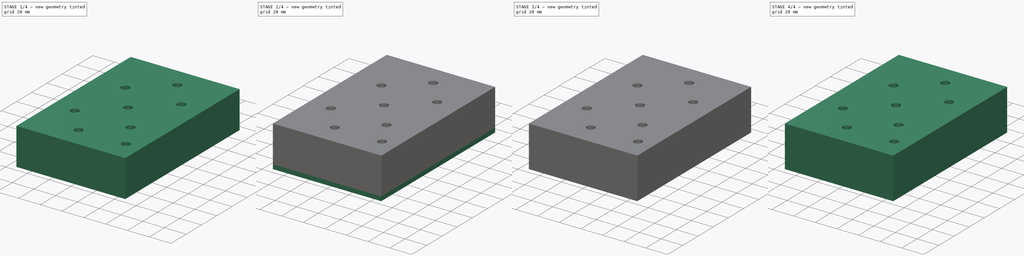
[diagram: build sequence overview — one tinted view per stage of 4, left to right]
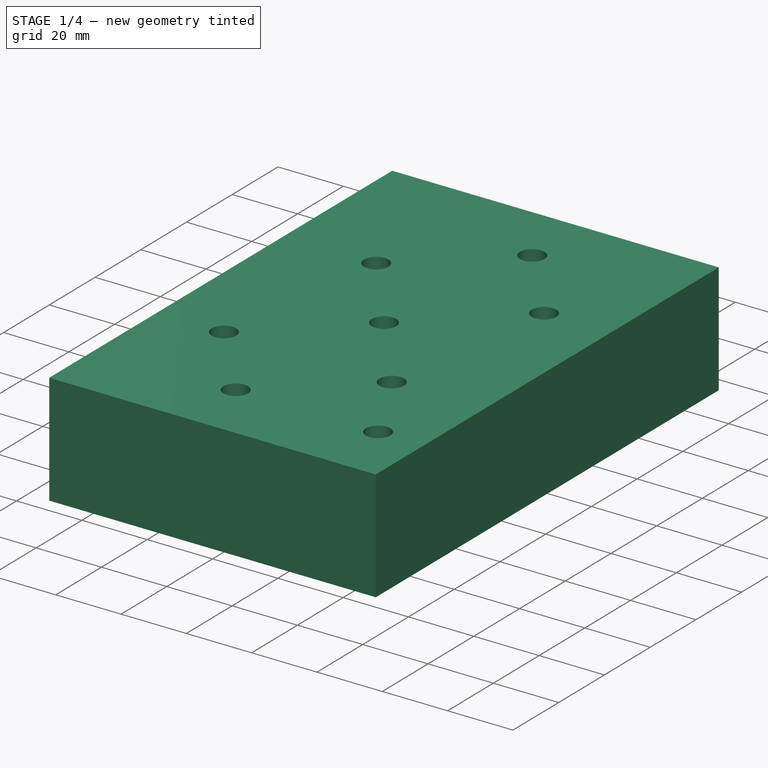
[diagram: stage 1 of 4 — iso view after this stage's code; geometry added in this stage tinted green]
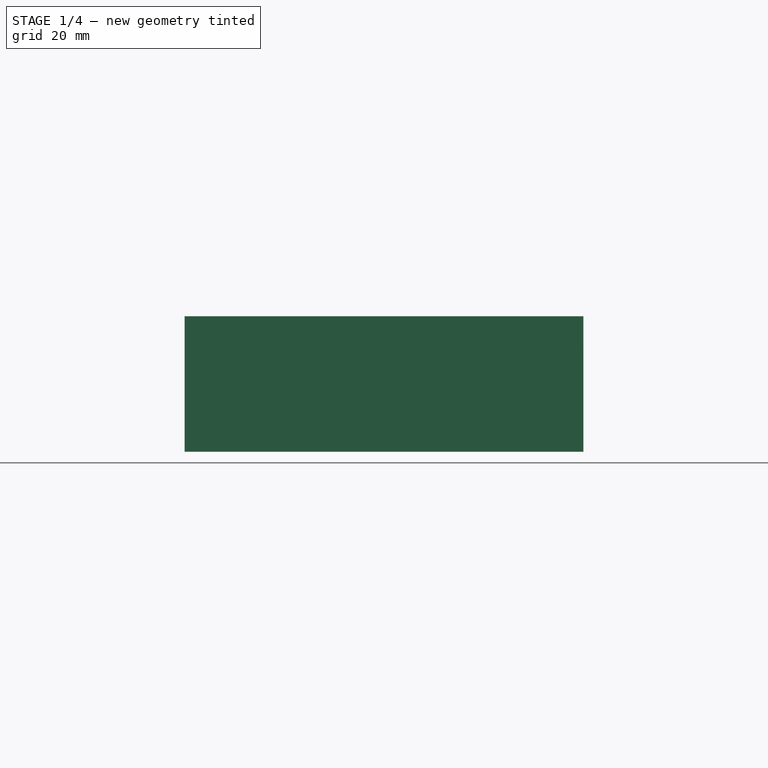
[diagram: stage 1 of 4 — front view after this stage's code; geometry added in this stage tinted green]
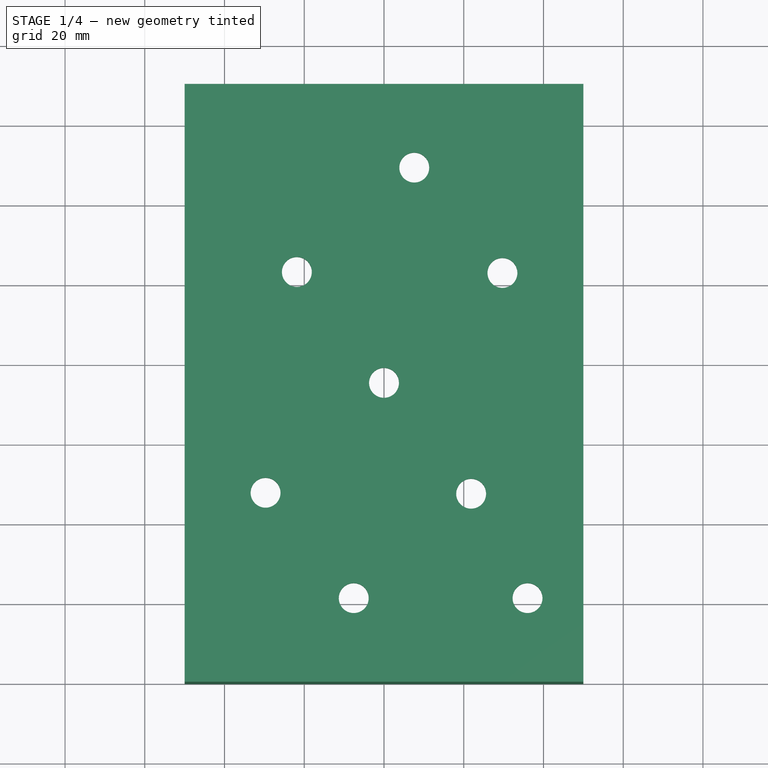
[diagram: stage 1 of 4 — top view after this stage's code; geometry added in this stage tinted green]
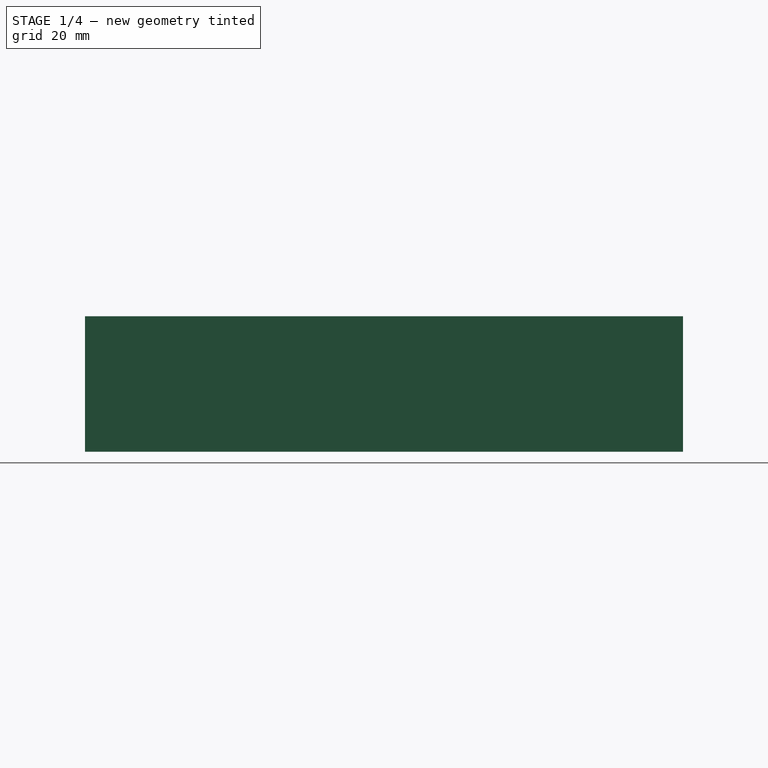
[diagram: stage 1 of 4 — right view after this stage's code; geometry added in this stage tinted green]
FCSTD DOCUMENT  (FreeCAD 0.15R4671 (Git))
Label: ALL
License: All rights reserved
LicenseURL: http://en.wikipedia.org/wiki/All_rights_reserved
objects: Sketcher::SketchObject×10, PartDesign::Pad×5, PartDesign::Pocket×5, Part::Feature×4, Part::MultiFuse×1, Part::Extrusion×1
note: 36 computed .brp shape members not serialized (recipe doc carries the construction recipe); baked Part::Feature solids carry a one-line shape summary decoded from their .brp

FEATURE [Part::Feature] Pocket003_cs
  shape: bbox 100 x 150 x 0.002 mm, 0 faces, 0 solids (baked)
FEATURE [Part::Extrusion] Extrude
  Base = -> Pocket003_cs
  Dir = (0,0,30)
  Solid = true
FEATURE [Sketcher::SketchObject] Sketch008
  ExternalGeometry = -> [Extrude]
  Placement = pos=(0,0,34) rot=(0,0,1;0rad)
  Support = -> Extrude [Face63]
  sketch-geometry (4):
    g0: LineSegment StartX=-50 StartY=150 StartZ=0 EndX=50 EndY=150 EndZ=0
    g1: LineSegment StartX=50 StartY=150 StartZ=0 EndX=50 EndY=0 EndZ=0
    g2: LineSegment StartX=50 StartY=0 StartZ=0 EndX=-50 EndY=0 EndZ=0
    g3: LineSegment StartX=-50 StartY=0 StartZ=0 EndX=-50 EndY=150 EndZ=0
  constraints (10):
    c: Coincident(g0,g1)
    c: Coincident(g1,g2)
    c: Coincident(g2,g3)
    c: Coincident(g3,g0)
    c: Horizontal(g0)
    c: Horizontal(g2)
    c: Vertical(g1)
    c: Vertical(g3)
    c: Coincident(g0,g-5)
    c: Coincident(g1,g-6)
FEATURE [PartDesign::Pad] Pad004
  Length = 4
  Length2 = 100
  Sketch = -> Sketch008
  Type = 0
FEATURE [Sketcher::SketchObject] Sketch009
  ExternalGeometry = -> [Pad004]
  Placement = pos=(0,0,34) rot=(1,0,0;3.14159rad)
  Support = -> Pad004 [Face67]
  sketch-geometry (29):
    g0: LineSegment [constr] StartX=-24.9325 StartY=-15 StartZ=0 EndX=9.75404 EndY=-27 EndZ=0
    g1: LineSegment [constr] StartX=-23.246 StartY=-27 StartZ=0 EndX=8.06755 EndY=-15 EndZ=0
    g2: GeomPoint [constr] X=-7.58921 Y=-21 Z=0
    g3: LineSegment [constr] StartX=-21.3432 StartY=-69 StartZ=0 EndX=21.3432 EndY=-81 EndZ=0
    g4: LineSegment [constr] StartX=-19.6568 StartY=-81 StartZ=0 EndX=19.6568 EndY=-69 EndZ=0
    g5: LineSegment [constr] StartX=-8.06755 StartY=-135 StartZ=0 EndX=23.246 EndY=-123 EndZ=0
    g6: LineSegment [constr] StartX=-9.75404 StartY=-123 StartZ=0 EndX=24.9325 EndY=-135 EndZ=0
    g7: LineSegment [constr] StartX=27.246 StartY=-123 StartZ=0 EndX=32.7811 EndY=-77 EndZ=0
    g8: LineSegment [constr] StartX=22.0809 StartY=-86.2485 StartZ=0 EndX=39.246 EndY=-123 EndZ=0
    g9: LineSegment [constr] StartX=-32.2189 StartY=-77 StartZ=0 EndX=-13.754 EndY=-123 EndZ=0
    g10: LineSegment [constr] StartX=-25.754 StartY=-123 StartZ=0 EndX=-18.8082 EndY=-87.0377 EndZ=0
    g11: LineSegment [constr] StartX=25.754 StartY=-27 StartZ=0 EndX=18.8082 EndY=-62.9623 EndZ=0
    g12: LineSegment [constr] StartX=32.2189 StartY=-73 StartZ=0 EndX=13.754 EndY=-27 EndZ=0
    g13: LineSegment [constr] StartX=-39.246 StartY=-27 StartZ=0 EndX=-22.0809 EndY=-63.7515 EndZ=0
    g14: LineSegment [constr] StartX=-32.7811 StartY=-73 StartZ=0 EndX=-27.246 EndY=-27 EndZ=0
    g15: GeomPoint [constr] X=-29.7042 Y=-47.4295 Z=0
    g16: GeomPoint [constr] X=0 Y=-75 Z=0
    g17: GeomPoint [constr] X=21.8558 Y=-47.1833 Z=0
    g18: GeomPoint [constr] X=29.7042 Y=-102.571 Z=0
    g19: GeomPoint [constr] X=7.58921 Y=-129 Z=0
    g20: GeomPoint [constr] X=-21.8558 Y=-102.817 Z=0
    g21: Circle CenterX=-7.58921 CenterY=-21 CenterZ=0 NormalX=0 NormalY=0 NormalZ=1 Radius=3.75
    g22: Circle CenterX=21.8558 CenterY=-47.1833 CenterZ=0 NormalX=0 NormalY=0 NormalZ=1 Radius=3.75
    g23: Circle CenterX=0 CenterY=-75 CenterZ=0 NormalX=0 NormalY=0 NormalZ=1 Radius=3.75
    g24: Circle CenterX=-29.7042 CenterY=-47.4295 CenterZ=0 NormalX=0 NormalY=0 NormalZ=1 Radius=3.75
    g25: Circle CenterX=-21.8558 CenterY=-102.817 CenterZ=0 NormalX=0 NormalY=0 NormalZ=1 Radius=3.75
    g26: Circle CenterX=7.58921 CenterY=-129 CenterZ=0 NormalX=0 NormalY=0 NormalZ=1 Radius=3.75
    g27: Circle CenterX=29.7042 CenterY=-102.571 CenterZ=0 NormalX=0 NormalY=0 NormalZ=1 Radius=3.75
    g28: Circle CenterX=36 CenterY=-21 CenterZ=0 NormalX=0 NormalY=0 NormalZ=1 Radius=3.75
  constraints (58):
    c: Coincident(g0,g-3)
    c: Coincident(g0,g-4)
    c: Coincident(g1,g-4)
    c: Coincident(g1,g-3)
    c: PointOnObject(g2,g0)
    c: PointOnObject(g2,g1)
    c: Coincident(g3,g-5)
    c: Coincident(g3,g-6)
    c: Coincident(g4,g-6)
    c: Coincident(g4,g-5)
    c: Coincident(g5,g-7)
    c: Coincident(g5,g-8)
    c: Coincident(g6,g-7)
    c: Coincident(g6,g-8)
    c: Coincident(g7,g-11)
    c: Coincident(g7,g-10)
    c: Coincident(g8,g-11)
    c: Coincident(g8,g-10)
    c: Coincident(g9,g-13)
    c: Coincident(g9,g-12)
    c: Coincident(g10,g-13)
    c: Coincident(g10,g-12)
    c: Coincident(g11,g-14)
    c: Coincident(g11,g-15)
    c: Coincident(g12,g-14)
    c: Coincident(g12,g-15)
    c: Coincident(g13,g-17)
    c: Coincident(g13,g-16)
    c: Coincident(g14,g-17)
    c: Coincident(g14,g-16)
    c: PointOnObject(g15,g13)
    c: PointOnObject(g16,g4)
    c: PointOnObject(g17,g12)
    c: PointOnObject(g18,g8)
    c: PointOnObject(g19,g6)
    c: PointOnObject(g20,g10)
    c: PointOnObject(g20,g9)
    c: PointOnObject(g16,g3)
    c: PointOnObject(g15,g14)
    c: PointOnObject(g17,g11)
    c: PointOnObject(g18,g7)
    c: PointOnObject(g19,g5)
    c: Coincident(g21,g2)
    c: Coincident(g22,g17)
    c: Coincident(g23,g16)
    c: Coincident(g24,g15)
    c: Coincident(g25,g20)
    c: Coincident(g26,g19)
    c: Coincident(g27,g18)
    c: Coincident(g28,g-9)
    c: Radius(g28) = 3.75
    c: Equal(g28,g22)
    c: Equal(g28,g21)
    c: Equal(g28,g24)
    c: Equal(g28,g23)
    c: Equal(g28,g27)
    c: Equal(g28,g26)
    c: Equal(g28,g25)
FEATURE [PartDesign::Pocket] Pocket004
  Length = 5
  Sketch = -> Sketch009
  Type = 0
FEATURE [Part::Feature] Pocket005  label="BACK PLATE"
  shape: bbox 100 x 150 x 34 mm, 78 faces (baked)
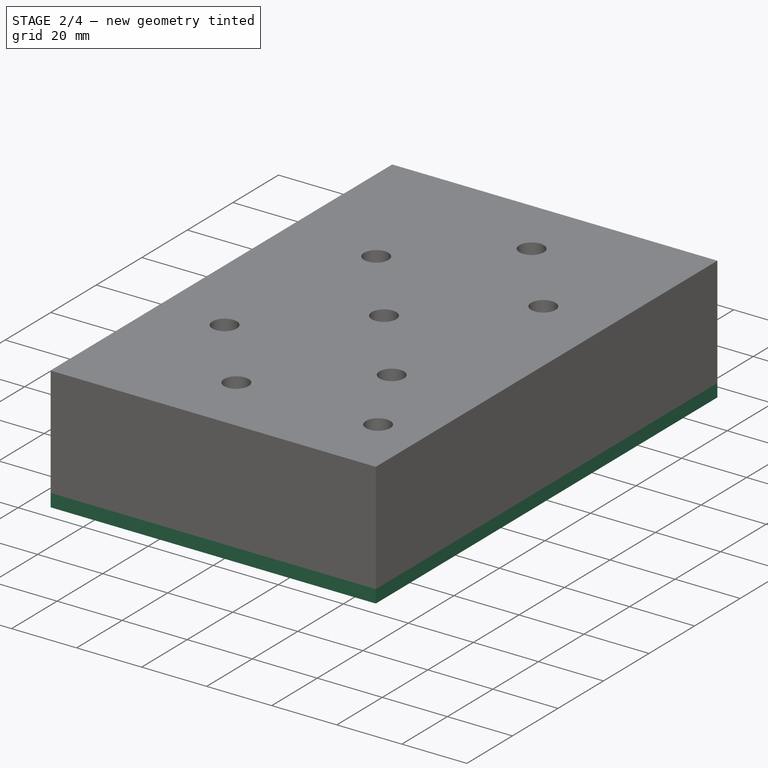
[diagram: stage 2 of 4 — iso view after this stage's code; geometry added in this stage tinted green]
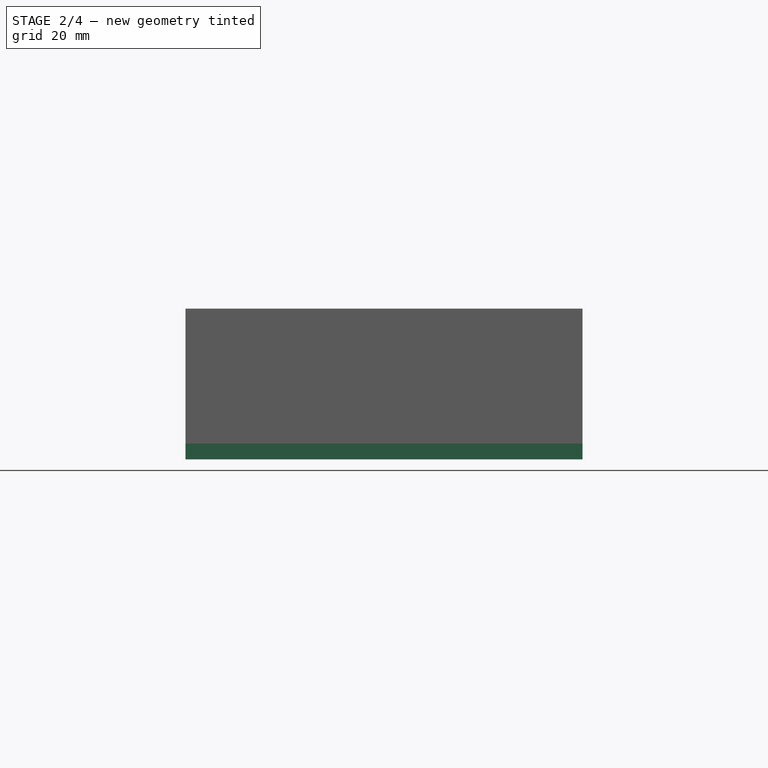
[diagram: stage 2 of 4 — front view after this stage's code; geometry added in this stage tinted green]
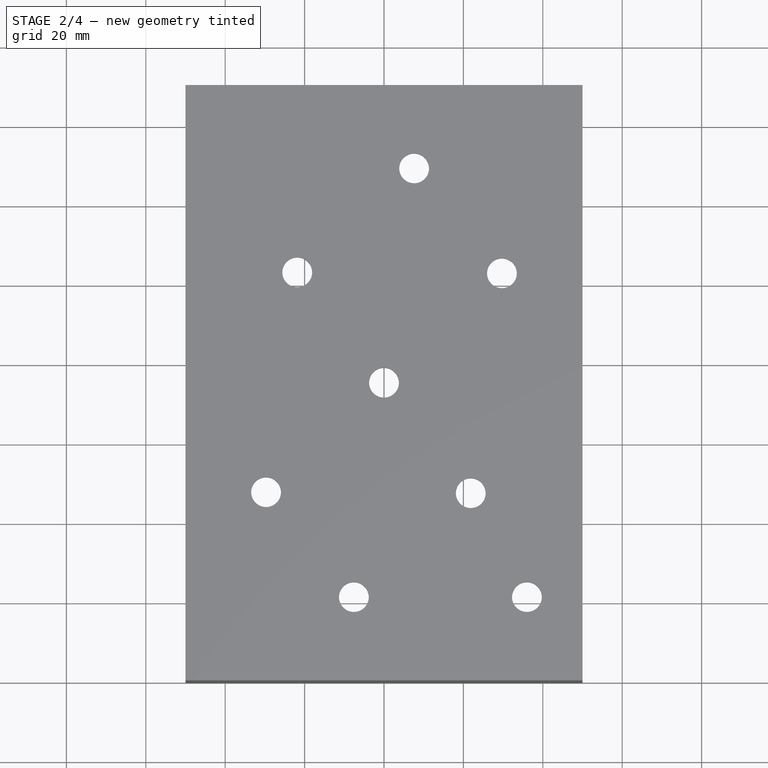
[diagram: stage 2 of 4 — top view after this stage's code; geometry added in this stage tinted green]
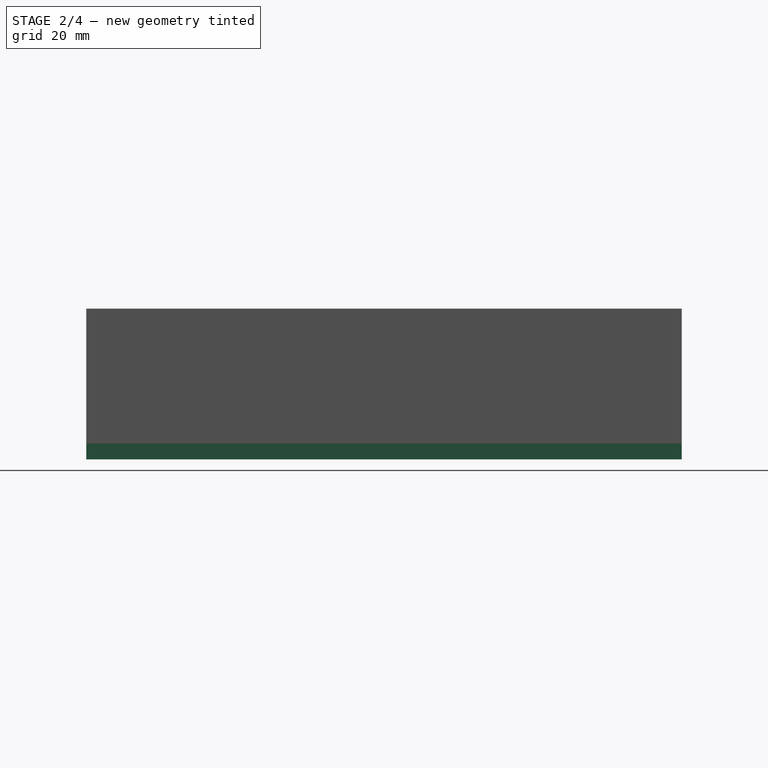
[diagram: stage 2 of 4 — right view after this stage's code; geometry added in this stage tinted green]
FEATURE [Sketcher::SketchObject] Sketch005
  sketch-geometry (32):
    g0: LineSegment [constr] StartX=-84.5985 StartY=75 StartZ=0 EndX=84.5985 EndY=75 EndZ=0
    g1: LineSegment [constr] StartX=-31.8655 StartY=-5.86965 StartZ=0 EndX=-8.79618 EndY=158.277 EndZ=0
    g2: LineSegment [constr] StartX=6.47085 StartY=-24.8226 StartZ=0 EndX=34.2805 EndY=173.053 EndZ=0
    g3: LineSegment [constr] StartX=-20.5 StartY=75 StartZ=0 EndX=20.5 EndY=75 EndZ=0
    g4: LineSegment [constr] StartX=-27.246 StartY=27 StartZ=0 EndX=13.754 EndY=27 EndZ=0
    g5: LineSegment [constr] StartX=-28.9325 StartY=15 StartZ=0 EndX=12.0675 EndY=15 EndZ=0
    g6: LineSegment [constr] StartX=-13.754 StartY=123 StartZ=0 EndX=27.246 EndY=123 EndZ=0
    g7: LineSegment [constr] StartX=-12.0675 StartY=135 StartZ=0 EndX=28.9325 EndY=135 EndZ=0
    g8: LineSegment [constr] StartX=-21.3432 StartY=69 StartZ=0 EndX=19.6568 EndY=69 EndZ=0
    g9: LineSegment [constr] StartX=-19.6568 StartY=81 StartZ=0 EndX=21.3432 EndY=81 EndZ=0
    g10: LineSegment [constr] StartX=-35.4406 StartY=54.9158 StartZ=0 EndX=-29.9182 EndY=94.2096 EndZ=0
    g11: LineSegment [constr] StartX=-29.9182 StartY=94.2096 StartZ=0 EndX=-18.035 EndY=92.5395 EndZ=0
    g12: LineSegment [constr] StartX=29.64 StartY=53.8107 StartZ=0 EndX=35.1624 EndY=93.1045 EndZ=0
    g13: LineSegment [constr] StartX=23.2791 StartY=94.7746 StartZ=0 EndX=35.1624 EndY=93.1045 EndZ=0
    g14: LineSegment StartX=-21.3432 StartY=69 StartZ=0 EndX=-26.559 EndY=75 EndZ=0
    g15: LineSegment StartX=-26.559 StartY=75 StartZ=0 EndX=-19.6568 EndY=81 EndZ=0
    g16: LineSegment StartX=21.3432 StartY=81 StartZ=0 EndX=26.559 EndY=75 EndZ=0
    g17: LineSegment StartX=19.6568 StartY=69 StartZ=0 EndX=26.559 EndY=75 EndZ=0
    g18: LineSegment StartX=-18.8082 StartY=87.0377 StartZ=0 EndX=-30.3552 EndY=77 EndZ=0
    g19: LineSegment StartX=-22.0809 StartY=63.7515 StartZ=0 EndX=-30.1204 EndY=73 EndZ=0
    g20: LineSegment StartX=-32.899 StartY=73 StartZ=0 EndX=-30.1204 EndY=73 EndZ=0
    g21: LineSegment StartX=-32.3368 StartY=77 StartZ=0 EndX=-30.3552 EndY=77 EndZ=0
    g22: LineSegment StartX=-19.6568 StartY=81 StartZ=0 EndX=-18.8082 EndY=87.0377 EndZ=0
    g23: LineSegment StartX=-32.899 StartY=73 StartZ=0 EndX=-32.3368 EndY=77 EndZ=0
    g24: LineSegment StartX=22.0809 StartY=86.2485 StartZ=0 EndX=30.1204 EndY=77 EndZ=0
    g25: LineSegment StartX=18.8082 StartY=62.9623 StartZ=0 EndX=30.3552 EndY=73 EndZ=0
    g26: LineSegment StartX=30.1204 StartY=77 StartZ=0 EndX=32.899 EndY=77 EndZ=0
    g27: LineSegment StartX=30.3552 StartY=73 StartZ=0 EndX=32.3368 EndY=73 EndZ=0
    g28: LineSegment StartX=21.3432 StartY=81 StartZ=0 EndX=22.0809 EndY=86.2485 EndZ=0
    g29: LineSegment StartX=19.6568 StartY=69 StartZ=0 EndX=18.8082 EndY=62.9623 EndZ=0
    g30: LineSegment StartX=32.899 StartY=77 StartZ=0 EndX=32.3368 EndY=73 EndZ=0
    g31: LineSegment StartX=-21.3432 StartY=69 StartZ=0 EndX=-22.0809 EndY=63.7515 EndZ=0
  constraints (104):
    c: Horizontal(g0)
    c: Symmetric(g0,g0,g-2)
    c: DistanceY(g0) = 75
    c: Angle(g1) = 1.43117
    c: Parallel(g2,g1)
    c: PointOnObject(g3,g1)
    c: PointOnObject(g3,g2)
    c: Horizontal(g3)
    c: Symmetric(g3,g3,g-2)
    c: PointOnObject(g3,g0)
    c: DistanceX(g3,g3) = 41
    c: PointOnObject(g4,g1)
    c: PointOnObject(g4,g2)
    c: Horizontal(g4)
    c: DistanceY(g4,g3) = 48
    c: PointOnObject(g5,g1)
    c: PointOnObject(g5,g2)
    c: Horizontal(g5)
    c: DistanceY(g5,g4) = 12
    c: PointOnObject(g6,g1)
    c: PointOnObject(g6,g2)
    c: Horizontal(g6)
    c: DistanceY(g6,g3) = -48
    c: PointOnObject(g7,g1)
    c: PointOnObject(g7,g2)
    c: Horizontal(g7)
    c: DistanceY(g7,g6) = -12
    c: PointOnObject(g8,g1)
    c: PointOnObject(g8,g2)
    c: Horizontal(g8)
    c: PointOnObject(g9,g1)
    c: PointOnObject(g9,g2)
    c: Horizontal(g9)
    c: DistanceY(g9,g3) = -6
    c: DistanceY(g8,g3) = 6
    c: Parallel(g10,g1)
    c: Coincident(g11,g10)
    c: PointOnObject(g11,g1)
    c: Perpendicular(g11,g10)
    c: Distance(g11,g10) = 12
    c: PointOnObject(g13,g2)
    c: Coincident(g13,g12)
    c: Perpendicular(g13,g12)
    c: Parallel(g12,g2)
    c: Distance(g12,g13) = 12
    c: Coincident(g14,g8)
    c: PointOnObject(g14,g0)
    c: Coincident(g15,g14)
    c: Coincident(g15,g9)
    c: Perpendicular(g15,g14)
    c: Coincident(g16,g9)
    c: PointOnObject(g16,g0)
    c: Coincident(g17,g8)
    c: Coincident(g17,g16)
    c: Perpendicular(g16,g17)
    c: PointOnObject(g18,g1)
    c: PointOnObject(g19,g1)
    c: PointOnObject(g20,g10)
    c: Coincident(g20,g19)
    c: Horizontal(g20)
    c: PointOnObject(g21,g10)
    c: Coincident(g21,g18)
    c: Horizontal(g21)
    c: DistanceY(g20,g21) = 4
    c: DistanceY(g19,g14) = 2
    c: Parallel(g19,g14)
    c: Parallel(g15,g18)
    c: Distance(g8,g19) = 4
    c: Distance(g9,g18) = 4
    c: Coincident(g22,g9)
    c: Coincident(g22,g18)
    c: Coincident(g23,g20)
    c: Coincident(g23,g21)
    c: PointOnObject(g24,g2)
    c: PointOnObject(g25,g2)
    c: Parallel(g25,g17)
    c: Parallel(g24,g16)
    c: Coincident(g26,g24)
    c: PointOnObject(g26,g12)
    c: Horizontal(g26)
    c: Coincident(g27,g25)
    c: PointOnObject(g27,g12)
    c: Horizontal(g27)
    c: DistanceY(g27,g26) = 4
    c: DistanceY(g27,g16) = 2
    c: Distance(g8,g25) = 4
    c: Distance(g9,g24) = 4
    c: Coincident(g28,g9)
    c: Coincident(g28,g24)
    c: Coincident(g29,g8)
    c: Coincident(g29,g25)
    c: Coincident(g30,g26)
    c: Coincident(g30,g27)
    c: DistanceY(g1) = 158.277
    c: DistanceY(g1) = -5.86965
    c: DistanceY(g2) = 173.053
    c: DistanceY(g2) = -24.8226
    c: Equal(g12,g10)
    c: DistanceY(g10) = 54.9158
    c: DistanceY(g11) = 92.5395
    c: DistanceY(g13) = 94.7746
    c: DistanceX(g0) = 84.5985
    c: Coincident(g31,g8)
    c: Coincident(g31,g19)
FEATURE [PartDesign::Pad] Pad003
  Length = 4
  Length2 = 100
  Sketch = -> Sketch005
  Type = 0
FEATURE [Part::Feature] Fusion001  label="FRONT PLATE"
  shape: bbox 100 x 150 x 4 mm, 41 faces (baked)
FEATURE [Part::Feature] Fusion002
  shape: bbox 100 x 150 x 4.002 mm, 41 faces (baked)
FEATURE [Sketcher::SketchObject] Sketch006
  ExternalGeometry = -> [Fusion002]
  Placement = pos=(0,0,4) rot=(0,0,1;0rad)
  Support = -> Fusion002 [Face37]
  sketch-geometry (8):
    g0: LineSegment StartX=-17.8661 StartY=65 StartZ=0 EndX=15.0553 EndY=65 EndZ=0
    g1: LineSegment StartX=-22.6445 StartY=31 StartZ=0 EndX=10.2769 EndY=31 EndZ=0
    g2: LineSegment StartX=-17.8661 StartY=65 StartZ=0 EndX=-22.6445 EndY=31 EndZ=0
    g3: LineSegment StartX=15.0553 StartY=65 StartZ=0 EndX=10.2769 EndY=31 EndZ=0
    g4: LineSegment StartX=-10.2769 StartY=119 StartZ=0 EndX=22.6445 EndY=119 EndZ=0
    g5: LineSegment StartX=22.6445 StartY=119 StartZ=0 EndX=17.8661 EndY=85 EndZ=0
    g6: LineSegment StartX=17.8661 StartY=85 StartZ=0 EndX=-15.0553 EndY=85 EndZ=0
    g7: LineSegment StartX=-10.2769 StartY=119 StartZ=0 EndX=-15.0553 EndY=85 EndZ=0
  constraints (24):
    c: Horizontal(g0)
    c: Horizontal(g1)
    c: Coincident(g2,g0)
    c: Coincident(g2,g1)
    c: Coincident(g3,g0)
    c: Coincident(g3,g1)
    c: Parallel(g3,g-8)
    c: Parallel(g2,g-9)
    c: DistanceY(g0,g-7) = 4
    c: Distance(g-8,g3) = 4
    c: Distance(g1,g-9) = 4
    c: DistanceY(g1,g-10) = -4
    c: Horizontal(g4)
    c: Coincident(g5,g4)
    c: Coincident(g6,g5)
    c: Horizontal(g6)
    c: Coincident(g7,g4)
    c: Coincident(g6,g7)
    c: Parallel(g7,g-5)
    c: Parallel(g5,g-4)
    c: Distance(g4,g-4) = 4
    c: Distance(g4,g-5) = 4
    c: DistanceY(g5,g-6) = -4
    c: DistanceY(g4,g-3) = 4
FEATURE [PartDesign::Pocket] Pocket002
  Length = 5
  Sketch = -> Sketch006
  Type = 0
FEATURE [Sketcher::SketchObject] Sketch007
  ExternalGeometry = -> [Pocket002]
  Placement = pos=(0,0,4) rot=(0,0,1;0rad)
  Support = -> Pocket002 [Face5]
  sketch-geometry (10):
    g0: LineSegment StartX=-27.5447 StartY=139 StartZ=0 EndX=45.5339 EndY=139 EndZ=0
    g1: LineSegment StartX=-27.5447 StartY=139 StartZ=0 EndX=-45.5339 EndY=11 EndZ=0
    g2: LineSegment StartX=-46 StartY=146 StartZ=0 EndX=-46 EndY=4 EndZ=0
    g3: LineSegment StartX=-46 StartY=146 StartZ=0 EndX=46 EndY=146 EndZ=0
    g4: LineSegment StartX=30.3555 StartY=31 StartZ=0 EndX=45.5339 EndY=139 EndZ=0
    g5: LineSegment StartX=30.3555 StartY=31 StartZ=0 EndX=46 EndY=31 EndZ=0
    g6: LineSegment StartX=46 StartY=146 StartZ=0 EndX=46 EndY=31 EndZ=0
    g7: LineSegment StartX=-46 StartY=4 StartZ=0 EndX=46 EndY=4 EndZ=0
    g8: LineSegment StartX=-45.5339 StartY=11 StartZ=0 EndX=46 EndY=11 EndZ=0
    g9: LineSegment StartX=46 StartY=11 StartZ=0 EndX=46 EndY=4 EndZ=0
  constraints (30):
    c: Horizontal(g0)
    c: DistanceY(g0,g-4) = -4
    c: Coincident(g1,g0)
    c: Distance(g-7,g1) = 4
    c: Parallel(g1,g-7)
    c: Vertical(g2)
    c: Coincident(g3,g2)
    c: Horizontal(g3)
    c: DistanceX(g2,g-8) = -4
    c: DistanceY(g2,g-8) = 4
    c: DistanceX(g-9,g3) = -4
    c: Parallel(g4,g-5)
    c: Distance(g-5,g4) = 4
    c: Coincident(g4,g0)
    c: Coincident(g5,g4)
    c: Horizontal(g5)
    c: DistanceY(g4) = 31
    c: Coincident(g6,g3)
    c: Coincident(g6,g5)
    c: Vertical(g6)
    c: Horizontal(g7)
    c: Coincident(g2,g7)
    c: DistanceY(g2,g-8) = -4
    c: DistanceX(g-9,g7) = -4
    c: Horizontal(g8)
    c: DistanceY(g-6,g8) = -4
    c: Coincident(g1,g8)
    c: Coincident(g9,g8)
    c: Coincident(g9,g7)
    c: Vertical(g9)
FEATURE [PartDesign::Pocket] Pocket003
  Length = 5
  Sketch = -> Sketch007
  Type = 0
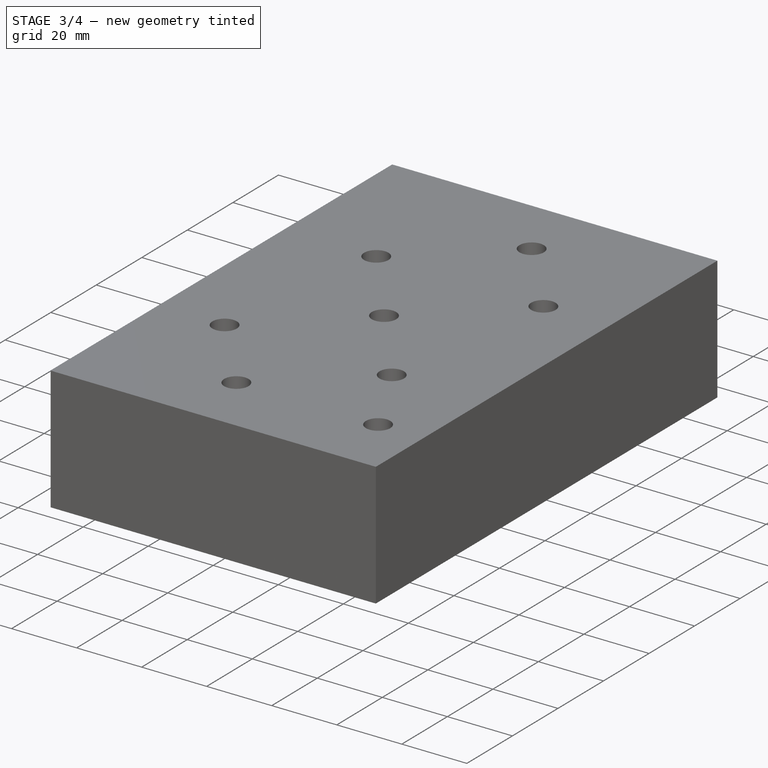
[diagram: stage 3 of 4 — iso view after this stage's code; geometry added in this stage tinted green]
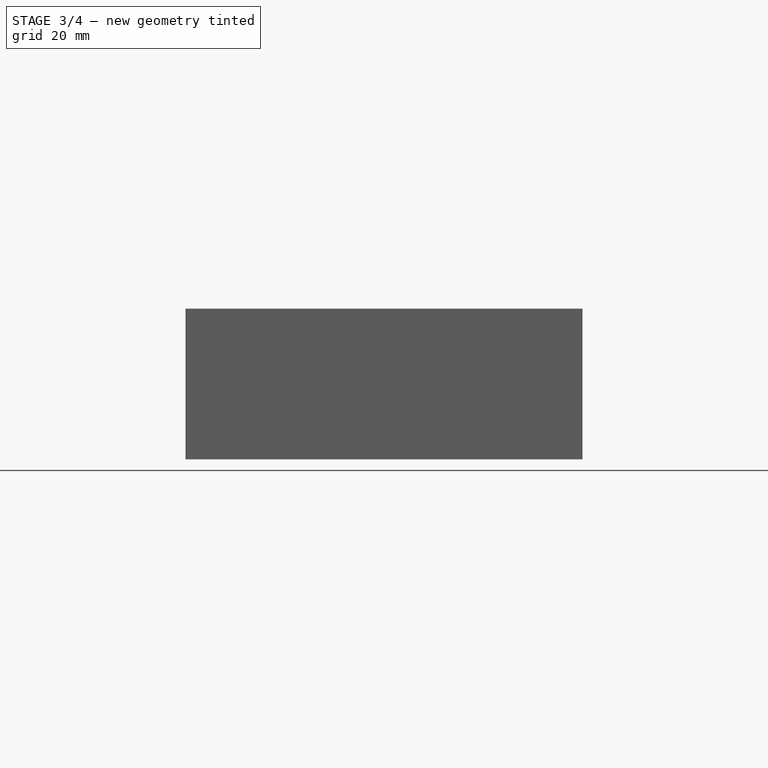
[diagram: stage 3 of 4 — front view after this stage's code; geometry added in this stage tinted green]
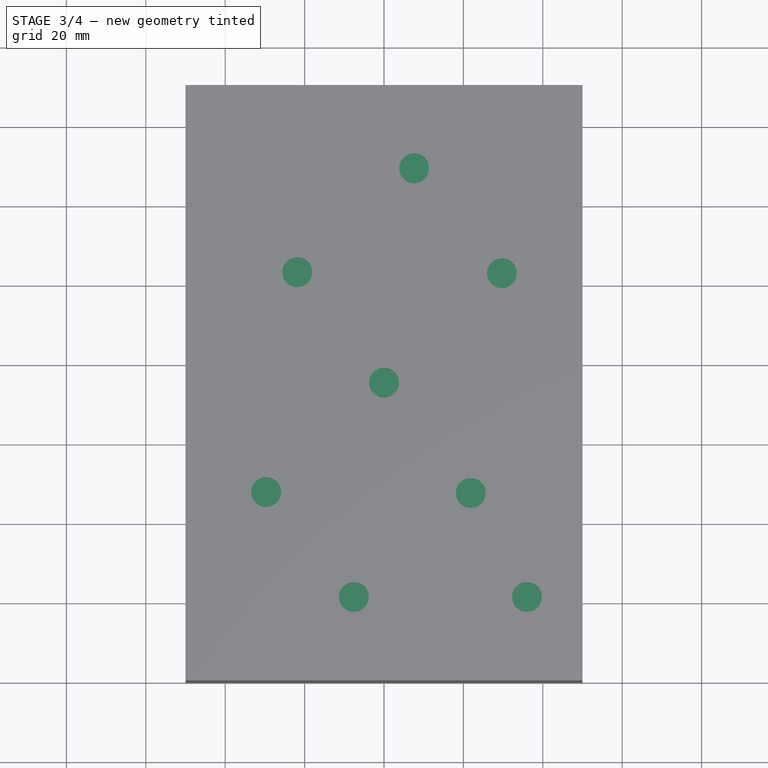
[diagram: stage 3 of 4 — top view after this stage's code; geometry added in this stage tinted green]
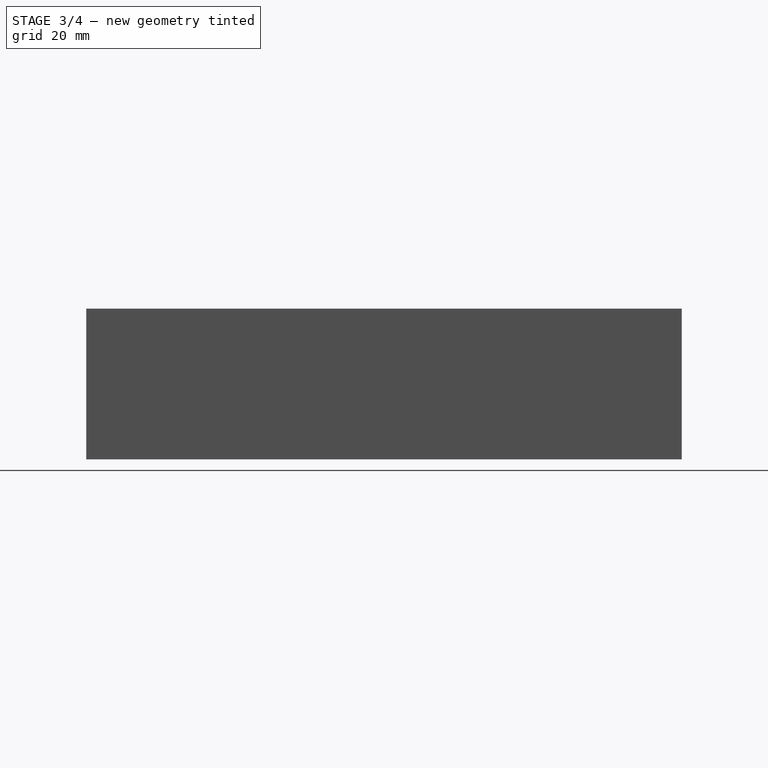
[diagram: stage 3 of 4 — right view after this stage's code; geometry added in this stage tinted green]
FEATURE [Sketcher::SketchObject] Sketch
  sketch-geometry (4):
    g0: LineSegment StartX=-50 StartY=0 StartZ=0 EndX=50 EndY=0 EndZ=0
    g1: LineSegment StartX=50 StartY=0 StartZ=0 EndX=50 EndY=150 EndZ=0
    g2: LineSegment StartX=50 StartY=150 StartZ=0 EndX=-50 EndY=150 EndZ=0
    g3: LineSegment StartX=-50 StartY=150 StartZ=0 EndX=-50 EndY=0 EndZ=0
  constraints (12):
    c: Coincident(g0,g1)
    c: Coincident(g1,g2)
    c: Coincident(g2,g3)
    c: Coincident(g3,g0)
    c: Horizontal(g0)
    c: Horizontal(g2)
    c: Vertical(g1)
    c: Vertical(g3)
    c: PointOnObject(g0,g-1)
    c: DistanceY(g2,g0) = -150
    c: Symmetric(g0,g0,g-2)
    c: DistanceX(g0,g0) = -100
FEATURE [PartDesign::Pad] Pad
  Length = 4
  Length2 = 100
  Sketch = -> Sketch
  Type = 0
FEATURE [Sketcher::SketchObject] Sketch003
  sketch-geometry (12):
    g0: LineSegment [constr] StartX=-80 StartY=75 StartZ=0 EndX=80 EndY=75 EndZ=0
    g1: LineSegment [constr] StartX=-27.246 StartY=27 StartZ=0 EndX=-13.754 EndY=123 EndZ=0
    g2: LineSegment [constr] StartX=27.246 StartY=123 StartZ=0 EndX=13.754 EndY=27 EndZ=0
    g3: LineSegment StartX=-27.246 StartY=27 StartZ=0 EndX=13.754 EndY=27 EndZ=0
    g4: LineSegment StartX=-13.754 StartY=123 StartZ=0 EndX=27.246 EndY=123 EndZ=0
    g5: LineSegment [constr] StartX=-20.5 StartY=75 StartZ=0 EndX=20.5 EndY=75 EndZ=0
    g6: LineSegment StartX=-27.246 StartY=27 StartZ=0 EndX=-21.3432 EndY=69 EndZ=0
    g7: LineSegment StartX=-21.3432 StartY=69 StartZ=0 EndX=19.6568 EndY=69 EndZ=0
    g8: LineSegment StartX=19.6568 StartY=69 StartZ=0 EndX=13.754 EndY=27 EndZ=0
    g9: LineSegment StartX=-19.6568 StartY=81 StartZ=0 EndX=-13.754 EndY=123 EndZ=0
    g10: LineSegment StartX=27.246 StartY=123 StartZ=0 EndX=21.3432 EndY=81 EndZ=0
    g11: LineSegment StartX=-19.6568 StartY=81 StartZ=0 EndX=21.3432 EndY=81 EndZ=0
  constraints (36):
    c: Horizontal(g0)
    c: Symmetric(g0,g0,g-2)
    c: DistanceY(g0) = 75
    c: Angle(g0,g1) = 1.43117
    c: Coincident(g3,g1)
    c: Coincident(g3,g2)
    c: Horizontal(g3)
    c: Coincident(g4,g1)
    c: Coincident(g4,g2)
    c: Horizontal(g4)
    c: Parallel(g2,g1)
    c: DistanceX(g1,g2) = 41
    c: PointOnObject(g5,g1)
    c: PointOnObject(g5,g2)
    c: Horizontal(g5)
    c: DistanceY(g5,g2) = 48
    c: DistanceY(g5,g2) = -48
    c: PointOnObject(g5,g0)
    c: Symmetric(g5,g5,g-2)
    c: DistanceX(g0) = 80
    c: Coincident(g6,g1)
    c: PointOnObject(g6,g1)
    c: Coincident(g7,g6)
    c: PointOnObject(g7,g2)
    c: Horizontal(g7)
    c: Coincident(g8,g7)
    c: Coincident(g8,g2)
    c: DistanceY(g7,g5) = 6
    c: PointOnObject(g9,g1)
    c: Coincident(g9,g1)
    c: Coincident(g10,g2)
    c: PointOnObject(g10,g2)
    c: Coincident(g11,g9)
    c: Coincident(g11,g10)
    c: Horizontal(g11)
    c: DistanceY(g10,g5) = -6
FEATURE [PartDesign::Pad] Pad001
  Length = 4
  Length2 = 100
  Sketch = -> Sketch003
  Type = 0
FEATURE [Sketcher::SketchObject] Sketch004
  sketch-geometry (24):
    g0: LineSegment [constr] StartX=-62.8266 StartY=75 StartZ=0 EndX=62.8266 EndY=75 EndZ=0
    g1: LineSegment [constr] StartX=-31.8502 StartY=-5.76105 StartZ=0 EndX=-8.79672 EndY=158.273 EndZ=0
    g2: LineSegment [constr] StartX=6.4731 StartY=-24.8066 StartZ=0 EndX=34.2844 EndY=173.081 EndZ=0
    g3: LineSegment [constr] StartX=-20.5 StartY=75 StartZ=0 EndX=20.5 EndY=75 EndZ=0
    g4: LineSegment [constr] StartX=-27.246 StartY=27 StartZ=0 EndX=13.754 EndY=27 EndZ=0
    g5: LineSegment [constr] StartX=-28.9325 StartY=15 StartZ=0 EndX=12.0675 EndY=15 EndZ=0
    g6: LineSegment StartX=-28.9325 StartY=15 StartZ=0 EndX=-27.246 EndY=27 EndZ=0
    g7: LineSegment StartX=-27.246 StartY=27 StartZ=0 EndX=-23.246 EndY=27 EndZ=0
    g8: LineSegment StartX=-23.246 StartY=27 StartZ=0 EndX=-24.9325 EndY=15 EndZ=0
    g9: LineSegment StartX=-24.9325 StartY=15 StartZ=0 EndX=-28.9325 EndY=15 EndZ=0
    g10: LineSegment StartX=13.754 StartY=27 StartZ=0 EndX=12.0675 EndY=15 EndZ=0
    g11: LineSegment StartX=9.75404 StartY=27 StartZ=0 EndX=8.06755 EndY=15 EndZ=0
    g12: LineSegment StartX=9.75404 StartY=27 StartZ=0 EndX=13.754 EndY=27 EndZ=0
    g13: LineSegment StartX=8.06755 StartY=15 StartZ=0 EndX=12.0675 EndY=15 EndZ=0
    g14: LineSegment [constr] StartX=-13.754 StartY=123 StartZ=0 EndX=27.246 EndY=123 EndZ=0
    g15: LineSegment [constr] StartX=-12.0675 StartY=135 StartZ=0 EndX=28.9325 EndY=135 EndZ=0
    g16: LineSegment StartX=-13.754 StartY=123 StartZ=0 EndX=-12.0675 EndY=135 EndZ=0
    g17: LineSegment StartX=-9.75404 StartY=123 StartZ=0 EndX=-8.06755 EndY=135 EndZ=0
    g18: LineSegment StartX=-8.06755 StartY=135 StartZ=0 EndX=-12.0675 EndY=135 EndZ=0
    g19: LineSegment StartX=-9.75404 StartY=123 StartZ=0 EndX=-13.754 EndY=123 EndZ=0
    g20: LineSegment StartX=28.9325 StartY=135 StartZ=0 EndX=27.246 EndY=123 EndZ=0
    g21: LineSegment StartX=24.9325 StartY=135 StartZ=0 EndX=23.246 EndY=123 EndZ=0
    g22: LineSegment StartX=24.9325 StartY=135 StartZ=0 EndX=28.9325 EndY=135 EndZ=0
    g23: LineSegment StartX=23.246 StartY=123 StartZ=0 EndX=27.246 EndY=123 EndZ=0
  constraints (67):
    c: Horizontal(g0)
    c: Symmetric(g0,g0,g-2)
    c: DistanceY(g0) = 75
    c: Angle(g1) = 1.43117
    c: Parallel(g2,g1)
    c: PointOnObject(g3,g1)
    c: PointOnObject(g3,g2)
    c: Horizontal(g3)
    c: Symmetric(g3,g3,g-2)
    c: PointOnObject(g3,g0)
    c: DistanceX(g3,g3) = 41
    c: PointOnObject(g4,g1)
    c: PointOnObject(g4,g2)
    c: Horizontal(g4)
    c: DistanceY(g4,g3) = 48
    c: PointOnObject(g5,g1)
    c: PointOnObject(g5,g2)
    c: Horizontal(g5)
    c: DistanceY(g5,g4) = 12
    c: Coincident(g6,g5)
    c: Coincident(g6,g4)
    c: Coincident(g7,g4)
    c: PointOnObject(g7,g4)
    c: Coincident(g8,g7)
    c: PointOnObject(g8,g5)
    c: Coincident(g9,g8)
    c: Coincident(g9,g5)
    c: Parallel(g6,g8)
    c: DistanceX(g7,g4) = -4
    c: Coincident(g10,g4)
    c: Coincident(g10,g5)
    c: PointOnObject(g11,g4)
    c: PointOnObject(g11,g5)
    c: Parallel(g10,g11)
    c: Coincident(g12,g11)
    c: Coincident(g12,g4)
    c: Coincident(g13,g11)
    c: Coincident(g13,g5)
    c: DistanceX(g11,g4) = 4
    c: PointOnObject(g14,g1)
    c: PointOnObject(g14,g2)
    c: Horizontal(g14)
    c: DistanceY(g14,g3) = -48
    c: PointOnObject(g15,g1)
    c: PointOnObject(g15,g2)
    c: Horizontal(g15)
    c: DistanceY(g15,g14) = -12
    c: Coincident(g16,g14)
    c: Coincident(g16,g15)
    c: PointOnObject(g17,g14)
    c: PointOnObject(g17,g15)
    c: Parallel(g16,g17)
    c: Coincident(g18,g17)
    c: Coincident(g18,g15)
    c: Coincident(g19,g17)
    c: Coincident(g19,g14)
    c: DistanceX(g17,g15) = -4
    c: Coincident(g20,g15)
    c: Coincident(g20,g14)
    c: PointOnObject(g21,g15)
    c: PointOnObject(g21,g14)
    c: Parallel(g20,g21)
    c: Coincident(g22,g21)
    c: Coincident(g22,g15)
    c: Coincident(g23,g21)
    c: Coincident(g23,g14)
    c: DistanceX(g21,g15) = 4
FEATURE [PartDesign::Pad] Pad002
  Length = 4
  Length2 = 100
  Sketch = -> Sketch004
  Type = 0
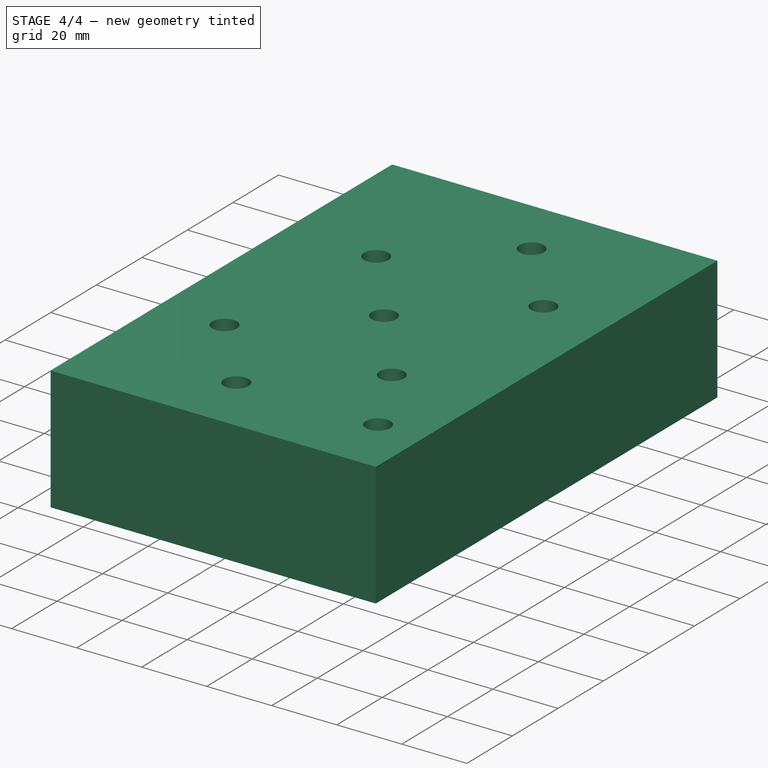
[diagram: stage 4 of 4 — iso view after this stage's code; geometry added in this stage tinted green]
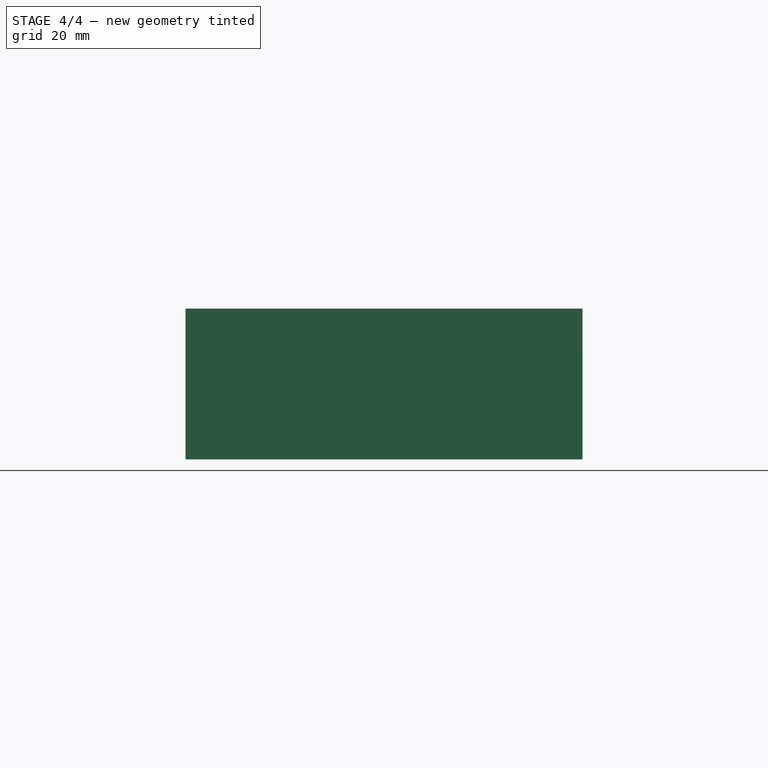
[diagram: stage 4 of 4 — front view after this stage's code; geometry added in this stage tinted green]
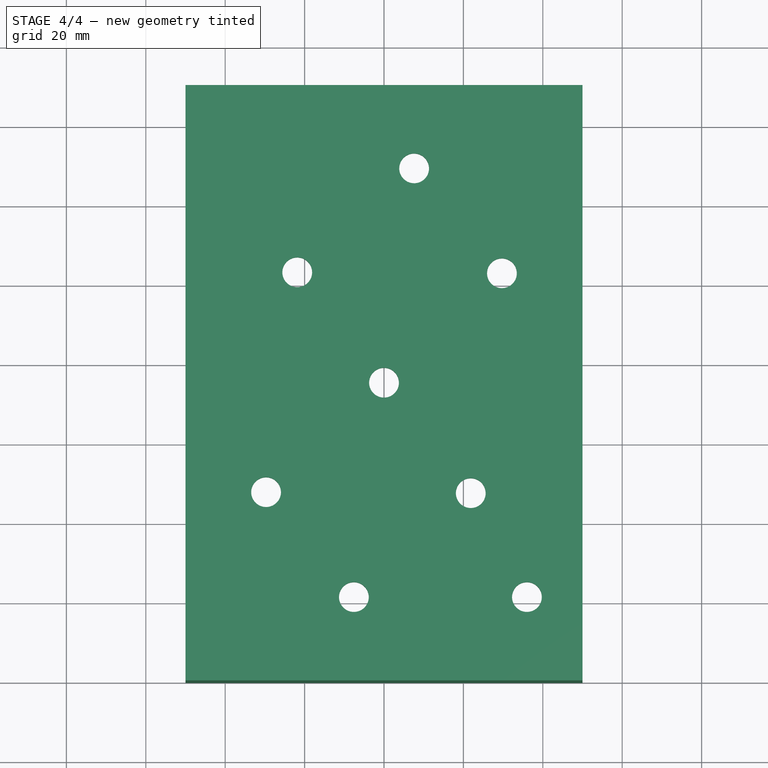
[diagram: stage 4 of 4 — top view after this stage's code; geometry added in this stage tinted green]
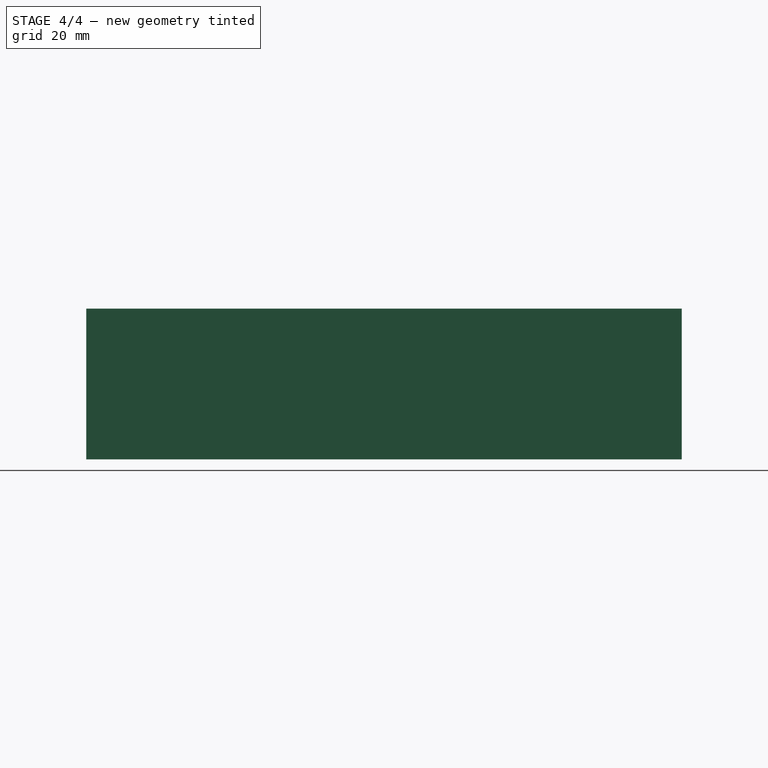
[diagram: stage 4 of 4 — right view after this stage's code; geometry added in this stage tinted green]
FEATURE [Sketcher::SketchObject] Sketch001  label="0"
  ExternalGeometry = -> [Pad]
  Placement = pos=(0,0,4) rot=(0,0,1;0rad)
  Support = -> Pad [Face6]
  sketch-geometry (15):
    g0: LineSegment StartX=-39.246 StartY=27 StartZ=0 EndX=-25.754 EndY=123 EndZ=0
    g1: LineSegment StartX=-11.9496 StartY=135 StartZ=0 EndX=28.8145 EndY=135 EndZ=0
    g2: LineSegment StartX=39.246 StartY=123 StartZ=0 EndX=25.754 EndY=27 EndZ=0
    g3: LineSegment StartX=-28.8145 StartY=15 StartZ=0 EndX=11.9496 EndY=15 EndZ=0
    g4: LineSegment [constr] StartX=-32.5 StartY=75 StartZ=0 EndX=32.5 EndY=75 EndZ=0
    g5: ArcOfCircle CenterX=-11.9496 CenterY=121.06 CenterZ=0 NormalX=0 NormalY=0 NormalZ=1 Radius=13.9401 StartAngle=1.5708 EndAngle=3.00197
    g6: ArcOfCircle CenterX=28.8145 CenterY=124.466 CenterZ=0 NormalX=0 NormalY=0 NormalZ=1 Radius=10.534 StartAngle=6.14356 EndAngle=7.85398
    g7: ArcOfCircle CenterX=11.9496 CenterY=28.9401 CenterZ=0 NormalX=0 NormalY=0 NormalZ=1 Radius=13.9401 StartAngle=4.71239 EndAngle=6.14356
    g8: ArcOfCircle CenterX=-28.8145 CenterY=25.534 CenterZ=0 NormalX=0 NormalY=0 NormalZ=1 Radius=10.534 StartAngle=3.00197 EndAngle=4.71239
    g9: LineSegment [constr] StartX=-11.9496 StartY=135 StartZ=0 EndX=-28.8145 EndY=15 EndZ=0
    g10: LineSegment [constr] StartX=11.9496 StartY=15 StartZ=0 EndX=28.8145 EndY=135 EndZ=0
    g11: LineSegment [constr] StartX=-11.9496 StartY=135 StartZ=0 EndX=-23.8328 EndY=136.67 EndZ=0
    g12: LineSegment [constr] StartX=-25.754 StartY=123 StartZ=0 EndX=-23.8328 EndY=136.67 EndZ=0
    g13: LineSegment [constr] StartX=39.246 StartY=123 StartZ=0 EndX=40.6977 EndY=133.33 EndZ=0
    g14: LineSegment [constr] StartX=28.8145 StartY=135 StartZ=0 EndX=40.6977 EndY=133.33 EndZ=0
  constraints (37):
    c: Angle(g0) = 1.43117
    c: Horizontal(g1)
    c: Parallel(g2,g0)
    c: Horizontal(g3)
    c: PointOnObject(g4,g0)
    c: PointOnObject(g4,g2)
    c: Symmetric(g4,g4,g-2)
    c: Symmetric(g-4,g-3,g4)
    c: Tangent(g1,g5) = 1.5708
    c: Tangent(g0,g5) = 1.5708
    c: Tangent(g1,g6) = 1.5708
    c: Tangent(g2,g6) = 1.5708
    c: Tangent(g2,g7) = 1.5708
    c: Tangent(g3,g7) = -1.5708
    c: Tangent(g0,g8) = 1.5708
    c: Tangent(g3,g8) = -1.5708
    c: Coincident(g9,g1)
    c: Coincident(g9,g3)
    c: Parallel(g9,g0)
    c: Coincident(g10,g3)
    c: Coincident(g10,g1)
    c: Parallel(g2,g10)
    c: Coincident(g11,g1)
    c: Perpendicular(g11,g9)
    c: Coincident(g12,g11)
    c: Perpendicular(g11,g12)
    c: Coincident(g12,g0)
    c: Coincident(g13,g2)
    c: Coincident(g14,g1)
    c: Coincident(g14,g13)
    c: Perpendicular(g14,g13)
    c: Perpendicular(g10,g14)
    c: Equal(g14,g11)
    c: Distance(g1,g11) = 12
    c: DistanceX(g4,g4) = -65
    c: DistanceY(g1,g3) = -120
    c: DistanceY(g4,g1) = 60
FEATURE [PartDesign::Pocket] Pocket
  Length = 5
  Sketch = -> Sketch001
  Type = 0
FEATURE [Sketcher::SketchObject] Sketch002
  Placement = pos=(0,0,4) rot=(0,0,1;0rad)
  Support = -> Pocket [Face5]
  sketch-geometry (1):
    g0: Circle CenterX=36 CenterY=21 CenterZ=0 NormalX=0 NormalY=0 NormalZ=1 Radius=6
  constraints (3):
    c: Radius(g0) = 6
    c: DistanceX(g0) = 36
    c: DistanceY(g0) = 21
FEATURE [PartDesign::Pocket] Pocket001
  Length = 5
  Sketch = -> Sketch002
  Type = 0
FEATURE [Part::MultiFuse] Fusion
  Shapes = -> [Pad003,Pad002,Pocket001,Pad001]
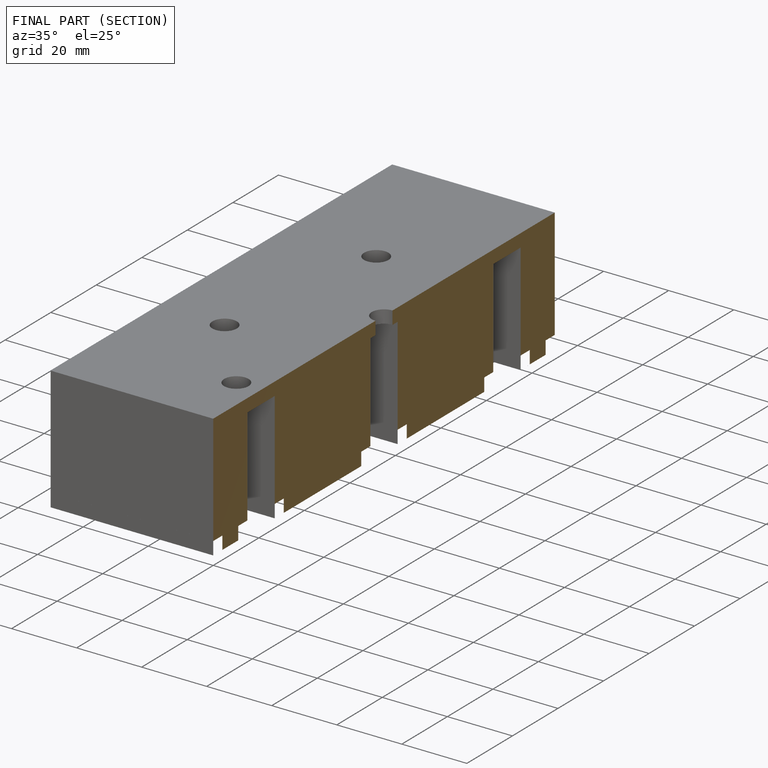
[diagram: finished part — half-section view (interior)]
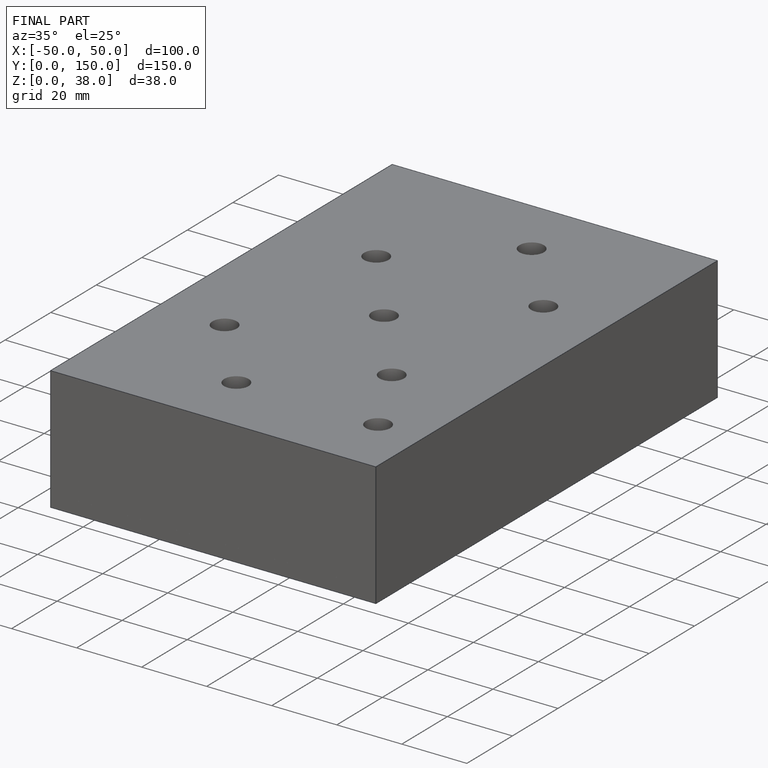
[diagram: finished part — iso view with bounding-box wireframe]
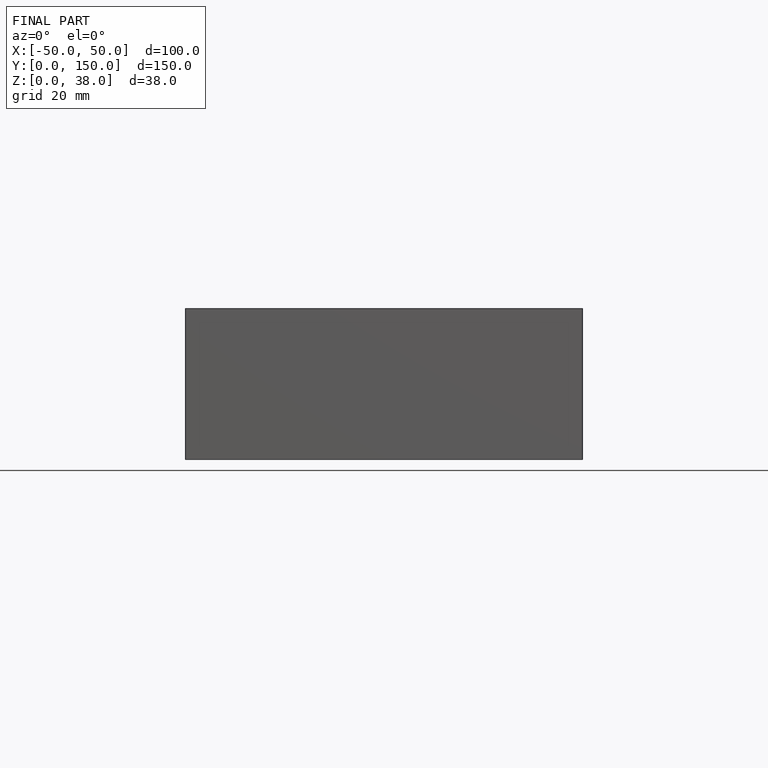
[diagram: finished part — front view with bounding-box wireframe]
